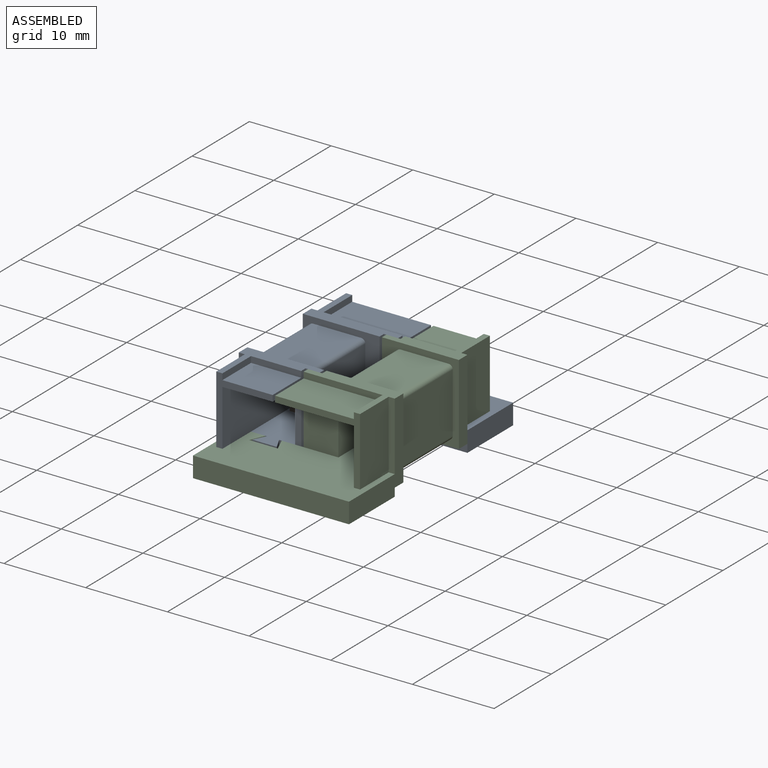
[diagram: assembled view]
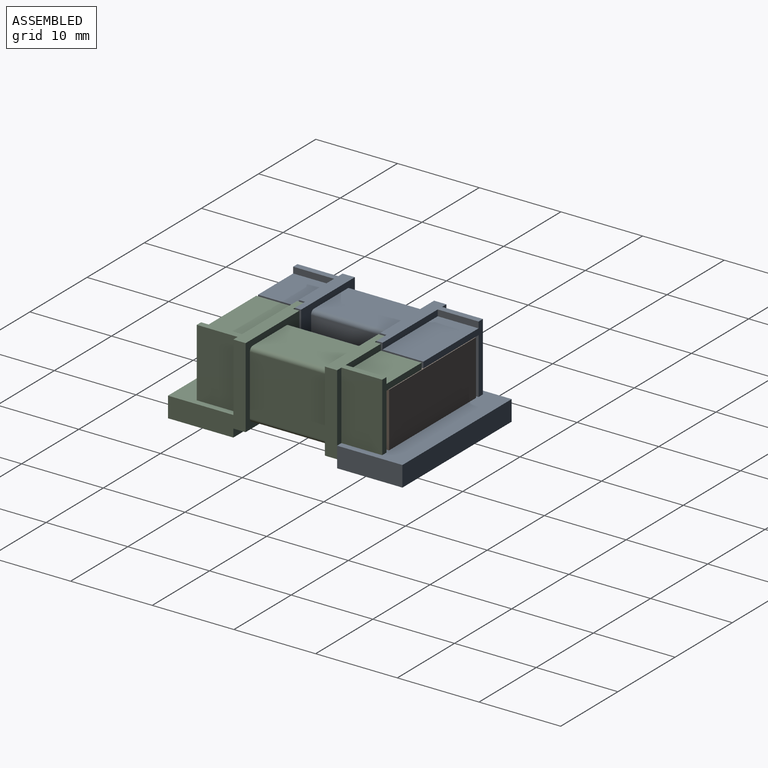
[diagram: assembled view, second angle]
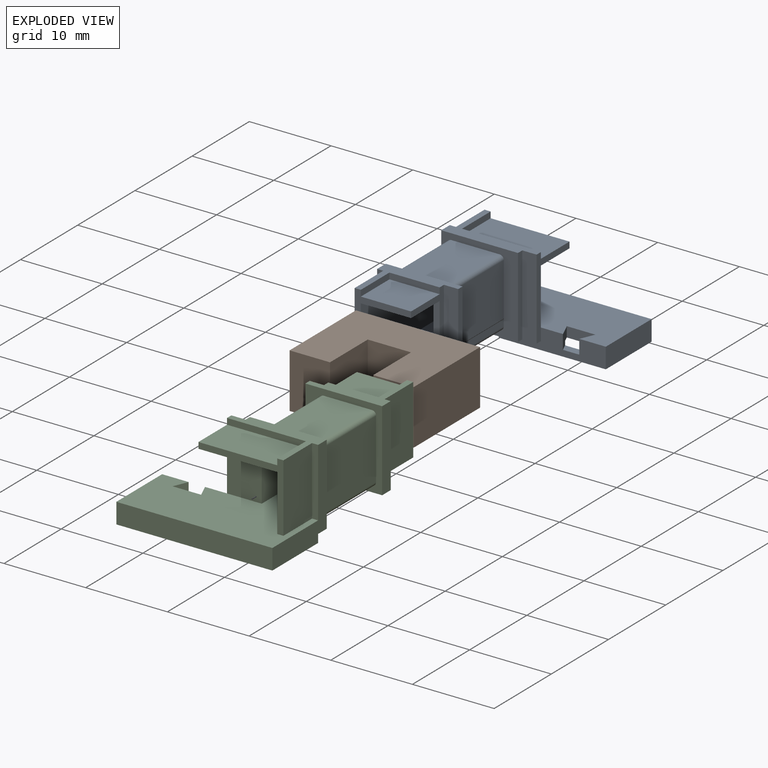
[diagram: exploded view]
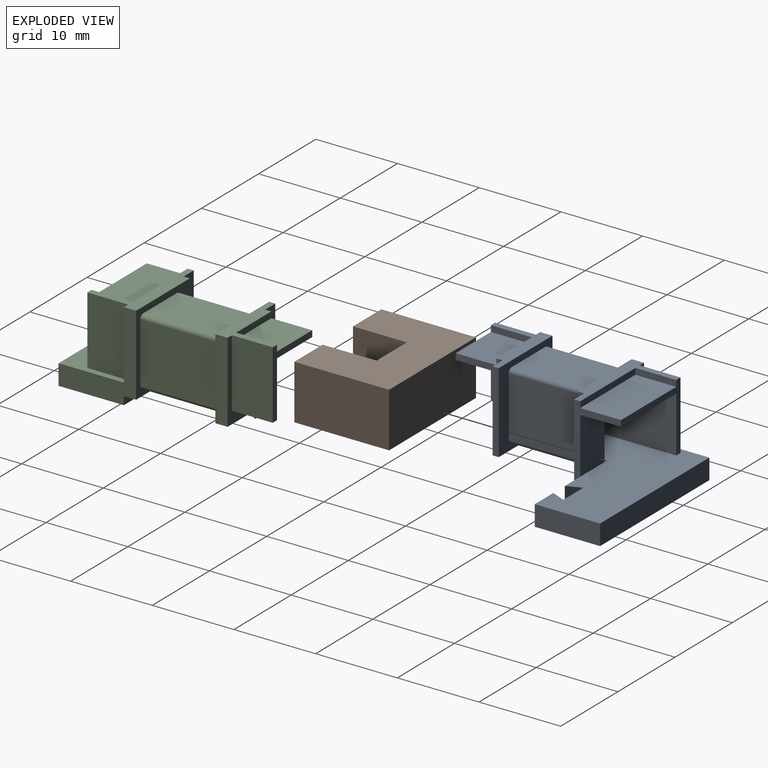
[diagram: exploded view, second angle]
ASSEMBLY  parts=3 mates=2
PART A: 76 faces, bbox 19.1x25.7x10.9 mm
  f0: plane 17.1x8.5mm, normal (0,0,-1), area 102.7mm2, adj f1,f14,f39,f40,f41,f42,f43,f44
  f1: plane 12.1x1.25mm, normal (0,1,0), area 13.7mm2, adj f0,f33,f41,f47,f72,f73,f75
  f2: plane 9.85x7.65mm, normal (0,-1,0), area 21mm2, adj f6,f11,f22,f23,f26,f27,f35,f36
  f3: plane 5x0.75mm, normal (1,0,0), area 3.8mm2, adj f4,f28,f57,f62
  f4: plane 9.65x0.75mm, normal (0,1,0), area 7.2mm2, adj f3,f28,f59,f62
  f5: plane 6.15x0.75mm, normal (0,-1,0), area 4.6mm2, adj f6,f61,f63,f64
  f6: plane 9.4x6.5mm, normal (0,0,1), area 16.5mm2, adj f2,f5,f7,f25,f26,f60,f61,f64
  f7: plane 9.85x0.75mm, normal (1,0,0), area 7.4mm2, adj f6,f25,f27,f60
  f8: plane 13.1x2.5mm, normal (0,-1,0), area 21.5mm2, adj f11,f13,f33,f34,f41,f59,f72,f73
  f9: plane 9.85x0.75mm, normal (1,0,0), area 7.4mm2, adj f13,f14,f28,f58
  f10: plane 8.35x0.75mm, normal (0,1,0), area 6.3mm2, adj f11,f28,f30,f56
  f11: plane 22.2x19.1mm, normal (0,0,1), area 216.2mm2, adj f2,f8,f10,f21,f23,f24,f30,f32
  f12: plane 2.5x1.5mm, normal (0,0,-1), area 3.7mm2, adj f14,f15,f30,f40
  f13: plane 5.15x1.5mm, normal (0,0,-1), area 6.4mm2, adj f8,f9,f14,f41,f58,f59
  f14: plane 9.85x9.4mm, normal (0,-1,0), area 34.7mm2, adj f0,f9,f12,f13,f17,f18,f19,f20
  f15: plane 2.5x1mm, normal (0,-1,0), area 2.5mm2, adj f12,f30,f33,f40
  f16: plane 1.5x1mm, normal (0,0,-1), area 1.5mm2, adj f31,f39,f42,f43
  f17: plane 9.7x7.35mm, normal (-1,0,0), area 71.3mm2, adj f14,f25,f68,f71
  f18: plane 9.7x5.9mm, normal (0,0,-1), area 57.2mm2, adj f14,f25,f68,f69
  f19: plane 9.7x7.35mm, normal (1,0,0), area 71.3mm2, adj f14,f25,f69,f70
  f20: plane 9.7x5.9mm, normal (0,0,1), area 57.2mm2, adj f14,f25,f70,f71
  f21: plane 22.7x6.85mm, normal (1,0,0), area 155.5mm2, adj f11,f22,f57,f66,f67
  f22: plane 22.7x9.65mm, normal (0,0,-1), area 147.6mm2, adj f2,f21,f23,f24,f57,f59,f61,f67
  f23: plane 12.7x6.85mm, normal (-1,0,0), area 87mm2, adj f2,f11,f22,f24
  f24: plane 6.85x4.25mm, normal (0,1,0), area 29.1mm2, adj f11,f22,f23,f59
  f25: plane 9.85x9.4mm, normal (0,1,0), area 35.2mm2, adj f6,f7,f17,f18,f19,f20,f26,f27
  f26: plane 9.85x1.5mm, normal (-1,0,0), area 14.8mm2, adj f2,f6,f25,f27
  f27: plane 9.4x1.5mm, normal (0,0,-1), area 12.8mm2, adj f2,f7,f25,f26,f60,f61
  f28: plane 11.15x6.5mm, normal (0,0,1), area 19.2mm2, adj f3,f4,f9,f10,f14,f30,f56,f57
  f29: plane 1.5x1.5mm, normal (0,0,-1), area 2.3mm2, adj f14,f31,f39,f42
  f30: plane 10.85x9.5mm, normal (-1,0,0), area 34.8mm2, adj f10,f11,f12,f14,f15,f28,f32,f33
  f31: plane 1.5x1mm, normal (0,-1,0), area 1.5mm2, adj f16,f29,f39,f42
  f32: plane 19.1x2.5mm, normal (0,1,0), area 47.8mm2, adj f11,f30,f33,f34
  f33: plane 19.1x8mm, normal (0,0,-1), area 46.7mm2, adj f1,f8,f15,f30,f32,f34,f40,f41
  f34: plane 8x2.5mm, normal (1,0,0), area 20mm2, adj f8,f11,f32,f33
  f35: plane 1.5x1.25mm, normal (0.89,0.45,0), area 2.1mm2, adj f2,f11,f37,f38
  f36: plane 1.5x1.25mm, normal (-0.89,0.45,0), area 2.1mm2, adj f2,f11,f37,f38
  f37: plane 3x1.25mm, normal (0,-1,0), area 3.8mm2, adj f11,f35,f36,f38
  f38: plane 3x1.5mm, normal (0,0,-1), area 3.4mm2, adj f2,f35,f36,f37
  f39: plane 2.5x1.25mm, normal (-1,0,0), area 1.6mm2, adj f0,f14,f16,f29,f31,f43
  f40: plane 2.5x1.25mm, normal (1,0,0), area 1.6mm2, adj f0,f12,f14,f15,f33,f44
  f41: plane 2.5x1.25mm, normal (-1,0,0), area 1.6mm2, adj f0,f1,f8,f13,f14,f33
  f42: plane 2.5x1.25mm, normal (1,0,0), area 1.6mm2, adj f0,f14,f16,f29,f31,f43
  f43: plane 1.5x1.25mm, normal (0,1,0), area 1.9mm2, adj f0,f16,f39,f42
  f44: plane 1.5x1.25mm, normal (0,1,0), area 1.9mm2, adj f0,f33,f40,f45
  f45: plane 6x1.25mm, normal (1,0,0), area 7.5mm2, adj f0,f33,f44,f46
  f46: plane 17.1x1.25mm, normal (0,-1,0), area 21.4mm2, adj f0,f33,f45,f47
  f47: plane 6x1.25mm, normal (-1,0,0), area 7.5mm2, adj f0,f1,f33,f46
  f48: cylinder r=0.45mm len=1mm, axis (0,0,-1), area 2.8mm2, adj f0,f49
  f49: plane 0.9x0.9mm, normal (0,0,-1), area 0.6mm2, adj f48
  f50: cylinder r=0.45mm len=1mm, axis (0,0,-1), area 2.8mm2, adj f0,f51
  f51: plane 0.9x0.9mm, normal (0,0,-1), area 0.6mm2, adj f50
  f52: cylinder r=0.45mm len=1mm, axis (0,0,-1), area 2.8mm2, adj f0,f53
  f53: plane 0.9x0.9mm, normal (0,0,-1), area 0.6mm2, adj f52
  f54: cylinder r=0.45mm len=1mm, axis (0,0,-1), area 2.8mm2, adj f0,f55
  f55: plane 0.9x0.9mm, normal (0,0,-1), area 0.6mm2, adj f54
  f56: plane 8.35x5mm, normal (-1,0,0), area 41.8mm2, adj f10,f11,f28,f57
  f57: plane 10.4x8.35mm, normal (0,1,0), area 13.5mm2, adj f3,f11,f21,f22,f28,f56,f59,f62
  f58: plane 9.85x1.75mm, normal (0,-1,0), area 17.2mm2, adj f9,f13,f28,f59
  f59: plane 9.85x5.75mm, normal (1,0,0), area 11.1mm2, adj f4,f8,f13,f22,f24,f28,f57,f58
  f60: plane 9.85x1.75mm, normal (0,-1,0), area 17.2mm2, adj f6,f7,f27,f61
  f61: plane 9.85x5.75mm, normal (1,0,0), area 11.1mm2, adj f2,f5,f6,f22,f27,f60,f63,f67
  f62: plane 9.65x5mm, normal (0,0,1), area 48.2mm2, adj f3,f4,f57,f59
  f63: plane 6.15x5mm, normal (0,0,1), area 30.7mm2, adj f5,f61,f64,f67
  f64: plane 5x0.75mm, normal (1,0,0), area 3.8mm2, adj f5,f6,f63,f67
  f65: plane 8.35x5mm, normal (-1,0,0), area 41.7mm2, adj f2,f6,f66,f67
  f66: plane 5x0.75mm, normal (0,0,-1), area 3.8mm2, adj f2,f21,f65,f67
  f67: plane 8.35x6.9mm, normal (0,-1,0), area 10.9mm2, adj f6,f21,f22,f61,f63,f64,f65,f66
  f68: cylinder r=0.5mm len=9.7mm, axis (0,1,0), area 7.6mm2, adj f14,f17,f18,f25
  f69: cylinder r=0.5mm len=9.7mm, axis (0,-1,0), area 7.6mm2, adj f14,f18,f19,f25
  f70: cylinder r=0.5mm len=9.7mm, axis (0,1,0), area 7.6mm2, adj f14,f19,f20,f25
  f71: cylinder r=0.5mm len=9.7mm, axis (0,-1,0), area 7.6mm2, adj f14,f17,f20,f25
  f72: plane 1.75x1.75mm, normal (0.92,0.39,0), area 2.9mm2, adj f0,f1,f8,f11,f74,f75
  f73: plane 1.75x1.75mm, normal (-0.92,0.39,0), area 2.9mm2, adj f0,f1,f8,f11,f74,f75
  f74: plane 3.5x1.25mm, normal (0,-1,0), area 4.4mm2, adj f0,f11,f72,f73
  f75: plane 2.86x1mm, normal (0,0,1), area 2.4mm2, adj f1,f8,f72,f73
PART B: 10 faces, bbox 15.2x11.6x6.7 mm
  f0: plane 11.6x6.7mm, normal (-1,0,0), area 77.7mm2, adj f1,f7,f8,f9
  f1: plane 6.7x4.95mm, normal (0,-1,0), area 33.2mm2, adj f0,f2,f8,f9
  f2: plane 6.7x6.6mm, normal (1,0,0), area 44.2mm2, adj f1,f3,f8,f9
  f3: plane 6.7x5.3mm, normal (0,-1,0), area 35.5mm2, adj f2,f4,f8,f9
  f4: plane 6.7x6.6mm, normal (-1,0,0), area 44.2mm2, adj f3,f5,f8,f9
  f5: plane 6.7x4.95mm, normal (0,-1,0), area 33.2mm2, adj f4,f6,f8,f9
  f6: plane 11.6x6.7mm, normal (1,0,0), area 77.7mm2, adj f5,f7,f8,f9
  f7: plane 15.2x6.7mm, normal (0,1,0), area 101.8mm2, adj f0,f6,f8,f9
  f8: plane 15.2x11.6mm, normal (0,0,1), area 141.3mm2, adj f0,f1,f2,f3,f4,f5,f6,f7
  f9: plane 15.2x11.6mm, normal (0,0,-1), area 141.3mm2, adj f0,f1,f2,f3,f4,f5,f6,f7
PART C: same geometry as A
PLACE A t=(-14.67,-5.5,3.83)mm fixed
PLACE B t=(-13.47,0.6,4.65)mm
PLACE C rot(axis=(0,0,1),180deg) t=(2.93,7.2,3.83)mm
MATE fastened A.f24 <-> B.f3  axis (0,1,0) through (-8.52,7.2,8)mm
MATE fastened B.f3 <-> C.f2  axis (0,-1,0) through (-3.22,7.2,8)mm
